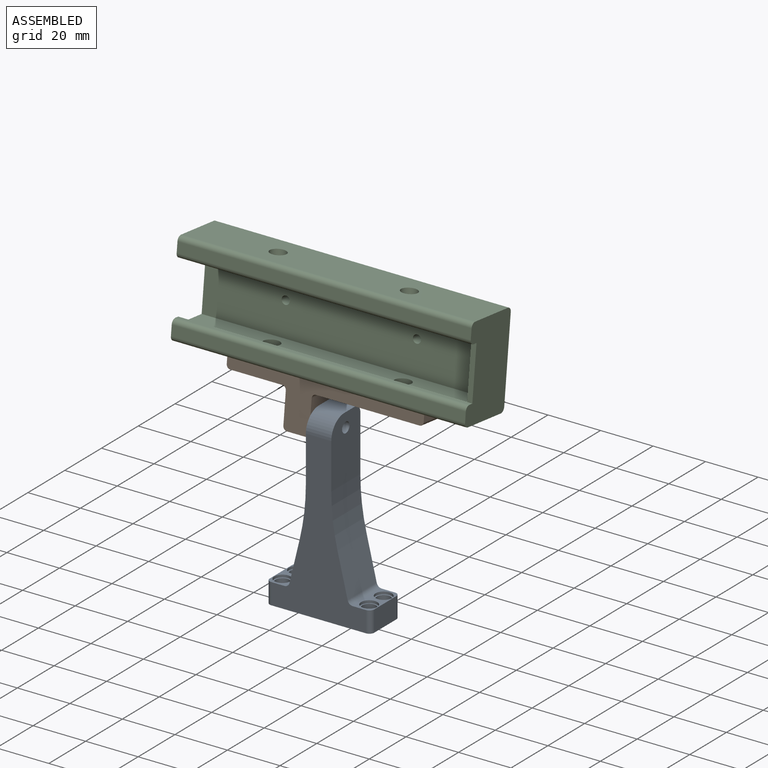
[diagram: assembled view]
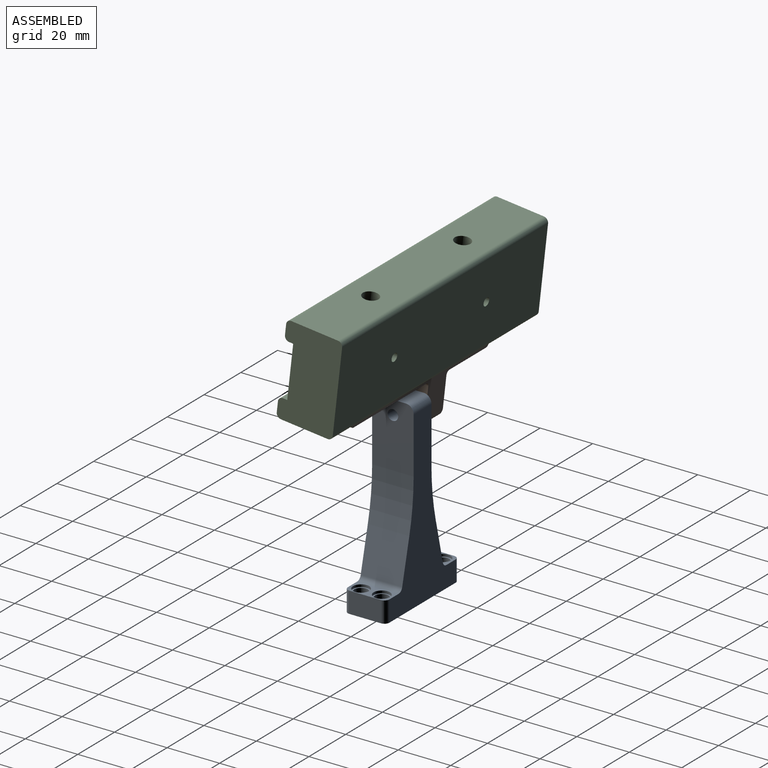
[diagram: assembled view, second angle]
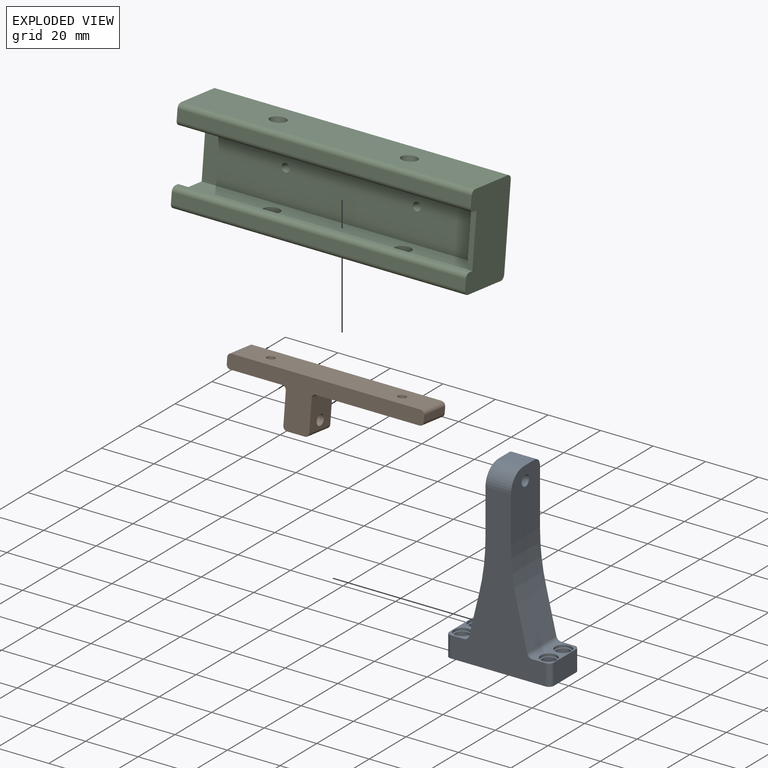
[diagram: exploded view]
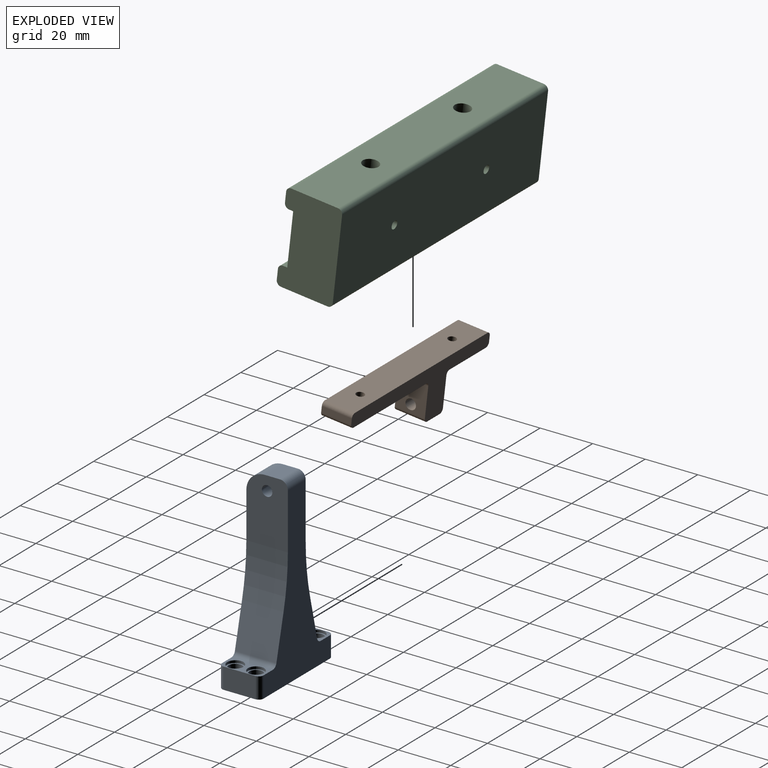
[diagram: exploded view, second angle]
ASSEMBLY  parts=3 mates=2
PART A: 43 faces, bbox 39.8x15.8x69.6 mm
  f0: plane 15.8x6.88mm, normal (0,0,1), area 46.9mm2, adj f8,f12,f13,f14,f15,f18,f23,f42
  f1: plane 24.36x15.8mm, normal (1,0,0), area 359.9mm2, adj f8,f12,f32,f34,f35,f36,f40
  f2: plane 15.8x6.88mm, normal (0,0,1), area 46.9mm2, adj f8,f9,f10,f11,f12,f16,f21,f41
  f3: cylinder r=2.59mm len=6.08mm, axis (0,0,-1), area 98.9mm2, adj f17,f25
  f4: cylinder r=2.59mm len=6.08mm, axis (0,0,-1), area 98.9mm2, adj f22,f30
  f5: cylinder r=2.59mm len=6.08mm, axis (0,0,-1), area 98.9mm2, adj f20,f28
  f6: cylinder r=2.59mm len=6.08mm, axis (0,0,-1), area 98.9mm2, adj f19,f27
  f7: plane 39.8x15.8mm, normal (0,0,-1), area 505.1mm2, adj f8,f9,f10,f11,f12,f13,f14,f15
  f8: plane 66.62x36.08mm, normal (0,1,0), area 1045.8mm2, adj f0,f1,f2,f7,f9,f15,f33,f36
  f9: cylinder r=1.86mm len=8mm, axis (0,0,-1), area 23.4mm2, adj f2,f7,f8,f10
  f10: plane 12.08x8mm, normal (-1,0,0), area 96.6mm2, adj f2,f7,f9,f11
  f11: cylinder r=1.86mm len=8mm, axis (0,0,-1), area 23.4mm2, adj f2,f7,f10,f12
  f12: plane 62.62x36.08mm, normal (0,-1,0), area 1007.1mm2, adj f0,f1,f2,f7,f11,f13,f33,f35
  f13: cylinder r=1.86mm len=8mm, axis (0,0,-1), area 23.4mm2, adj f0,f7,f12,f14
  f14: plane 12.08x8mm, normal (1,0,0), area 96.6mm2, adj f0,f7,f13,f15
  f15: cylinder r=1.86mm len=8mm, axis (0,0,-1), area 23.4mm2, adj f0,f7,f8,f14
  f16: cylinder r=3.1mm len=6.2mm, axis (0,0,1), area 18.7mm2, adj f2,f17
  f17: plane 6.2x6.2mm, normal (0,0,1), area 9.1mm2, adj f3,f16
  f18: cylinder r=3.1mm len=6.2mm, axis (0,0,1), area 18.7mm2, adj f0,f19
  f19: plane 6.2x6.2mm, normal (0,0,1), area 9.1mm2, adj f6,f18
  f20: plane 6.2x6.2mm, normal (0,0,1), area 9.1mm2, adj f5,f21
  f21: cylinder r=3.1mm len=6.2mm, axis (0,0,1), area 18.7mm2, adj f2,f20
  f22: plane 6.2x6.2mm, normal (0,0,1), area 9.1mm2, adj f4,f23
  f23: cylinder r=3.1mm len=6.2mm, axis (0,0,1), area 18.7mm2, adj f0,f22
  f24: cylinder r=3.1mm len=6.2mm, axis (0,0,-1), area 18.7mm2, adj f7,f25
  f25: plane 6.2x6.2mm, normal (0,0,-1), area 9.1mm2, adj f3,f24
  f26: cylinder r=3.1mm len=6.2mm, axis (0,0,-1), area 18.7mm2, adj f7,f27
  f27: plane 6.2x6.2mm, normal (0,0,-1), area 9.1mm2, adj f6,f26
  f28: plane 6.2x6.2mm, normal (0,0,-1), area 9.1mm2, adj f5,f29
  f29: cylinder r=3.1mm len=6.2mm, axis (0,0,-1), area 18.7mm2, adj f7,f28
  f30: plane 6.2x6.2mm, normal (0,0,-1), area 9.1mm2, adj f4,f31
  f31: cylinder r=3.1mm len=6.2mm, axis (0,0,-1), area 18.7mm2, adj f7,f30
  f32: plane 9.7x5.8mm, normal (0,0,1), area 56.2mm2, adj f1,f33,f35,f36
  f33: plane 24.36x15.8mm, normal (-1,0,0), area 359.9mm2, adj f8,f12,f32,f34,f35,f36,f39
  f34: cylinder r=2mm len=9.7mm, axis (-1,0,0), area 121.8mm2, adj f1,f33
  f35: cylinder r=7mm len=9.7mm, axis (-1,0,0), area 106.6mm2, adj f1,f12,f32,f33
  f36: cylinder r=3mm len=9.7mm, axis (1,0,0), area 45.7mm2, adj f1,f8,f32,f33
  f37: plane 16.11x15.8mm, normal (0.97,0,0.23), area 261.9mm2, adj f8,f12,f40,f42
  f38: plane 16.11x15.8mm, normal (-0.97,0,0.23), area 261.9mm2, adj f8,f12,f39,f41
  f39: cylinder r=83.55mm len=19.61mm, axis (0,1,0), area 312.8mm2, adj f8,f12,f33,f38
  f40: cylinder r=83.55mm len=19.61mm, axis (0,1,0), area 312.8mm2, adj f1,f8,f12,f37
  f41: cylinder r=2mm len=15.8mm, axis (0,1,0), area 42.1mm2, adj f2,f8,f12,f38
  f42: cylinder r=2mm len=15.8mm, axis (0,-1,0), area 42.1mm2, adj f0,f8,f12,f37
PART B: 21 faces, bbox 75x19.9x11.5 mm
  f0: plane 72x11.5mm, normal (0,1,0), area 812.9mm2, adj f8,f9,f10,f17,f19,f20
  f1: plane 11.5x2.28mm, normal (-1,0,0), area 26.2mm2, adj f8,f9,f10,f11
  f2: plane 39.43x11.5mm, normal (0,-1,0), area 445.8mm2, adj f8,f9,f11,f12,f20
  f3: plane 11.65x11.5mm, normal (-1,0,0), area 121.5mm2, adj f8,f9,f12,f13,f18
  f4: plane 11.5x6.85mm, normal (0,-1,0), area 78.8mm2, adj f8,f9,f13,f14
  f5: plane 11.65x11.5mm, normal (1,0,0), area 121.5mm2, adj f8,f9,f14,f15,f18
  f6: plane 19.73x11.5mm, normal (0,-1,0), area 219.3mm2, adj f8,f9,f15,f16,f19
  f7: plane 11.5x2.28mm, normal (1,0,0), area 26.2mm2, adj f8,f9,f16,f17
  f8: plane 75x19.93mm, normal (0,0,1), area 538.2mm2, adj f0,f1,f2,f3,f4,f5,f6,f7
  f9: plane 75x19.93mm, normal (0,0,-1), area 538.2mm2, adj f0,f1,f2,f3,f4,f5,f6,f7
  f10: cylinder r=1.5mm len=11.5mm, axis (0,0,-1), area 27.1mm2, adj f0,f1,f8,f9
  f11: cylinder r=1.5mm len=11.5mm, axis (0,0,-1), area 27.1mm2, adj f1,f2,f8,f9
  f12: cylinder r=1.5mm len=11.5mm, axis (0,0,-1), area 27.1mm2, adj f2,f3,f8,f9
  f13: cylinder r=1.5mm len=11.5mm, axis (0,0,-1), area 27.1mm2, adj f3,f4,f8,f9
  f14: cylinder r=1.5mm len=11.5mm, axis (0,0,1), area 27.1mm2, adj f4,f5,f8,f9
  f15: cylinder r=1.5mm len=11.5mm, axis (0,0,-1), area 27.1mm2, adj f5,f6,f8,f9
  f16: cylinder r=1.5mm len=11.5mm, axis (0,0,-1), area 27.1mm2, adj f6,f7,f8,f9
  f17: cylinder r=1.5mm len=11.5mm, axis (0,0,1), area 27.1mm2, adj f0,f7,f8,f9
  f18: cylinder r=2mm len=9.85mm, axis (1,0,0), area 123.8mm2, adj f3,f5
  f19: cylinder r=1.55mm len=5.28mm, axis (0,1,0), area 51.4mm2, adj f0,f6
  f20: cylinder r=1.55mm len=5.28mm, axis (0,1,0), area 51.4mm2, adj f0,f2
PART C: 32 faces, bbox 112x35.1x21.5 mm
  f0: plane 110x2.5mm, normal (0,0,-1), area 275mm2, adj f1,f9,f21,f30
  f1: plane 110x13.1mm, normal (0,-1,0), area 1384.5mm2, adj f0,f3,f21,f28,f29,f30
  f2: plane 110x13.1mm, normal (0,1,0), area 1384.5mm2, adj f3,f10,f21,f25,f27,f30
  f3: plane 110x25.1mm, normal (0,0,1), area 2746.4mm2, adj f1,f2,f21,f22,f23,f30
  f4: plane 112x17.88mm, normal (0,1,0), area 1946.4mm2, adj f17,f18,f20,f21,f28,f29
  f5: cylinder r=1.55mm len=3.1mm, axis (0,-1,0), area 30.2mm2, adj f7,f26
  f6: cylinder r=1.55mm len=3.1mm, axis (0,-1,0), area 30.2mm2, adj f7,f24
  f7: plane 112x17.88mm, normal (0,-1,0), area 1987.8mm2, adj f5,f6,f14,f15,f20,f21
  f8: cylinder r=1.78mm len=112mm, axis (-1,0,0), area 314mm2, adj f9,f19,f20,f21
  f9: plane 112x1.57mm, normal (0,-1,0), area 175.6mm2, adj f0,f8,f20,f21,f31
  f10: plane 110x2.5mm, normal (0,0,-1), area 275mm2, adj f2,f11,f21,f30
  f11: plane 112x1.57mm, normal (0,1,0), area 175.6mm2, adj f10,f12,f20,f21,f31
  f12: cylinder r=1.78mm len=112mm, axis (-1,0,0), area 314mm2, adj f11,f13,f20,f21
  f13: plane 112x3.93mm, normal (0,0,1), area 440.2mm2, adj f12,f14,f20,f21
  f14: cylinder r=1.78mm len=112mm, axis (-1,0,0), area 314mm2, adj f7,f13,f20,f21
  f15: cylinder r=1.78mm len=112mm, axis (-1,0,0), area 314mm2, adj f7,f16,f20,f21
  f16: plane 112x31.53mm, normal (0,0,-1), area 3516.8mm2, adj f15,f17,f20,f21,f22,f23
  f17: cylinder r=1.78mm len=112mm, axis (-1,0,0), area 314mm2, adj f4,f16,f20,f21
  f18: cylinder r=1.78mm len=112mm, axis (-1,0,0), area 314mm2, adj f4,f19,f20,f21
  f19: plane 112x3.93mm, normal (0,0,1), area 440.2mm2, adj f8,f18,f20,f21
  f20: plane 35.1x21.45mm, normal (1,0,0), area 681.5mm2, adj f4,f7,f8,f9,f11,f12,f13,f14
  f21: plane 35.1x21.45mm, normal (-1,0,0), area 352.7mm2, adj f0,f1,f2,f3,f4,f7,f8,f9
  f22: cylinder r=1.53mm len=5mm, axis (0,0,-1), area 47.9mm2, adj f3,f16
  f23: cylinder r=1.53mm len=5mm, axis (0,0,-1), area 47.9mm2, adj f3,f16
  f24: plane 6x6mm, normal (0,1,0), area 20.7mm2, adj f6,f25
  f25: cylinder r=3mm len=6mm, axis (0,1,0), area 35.8mm2, adj f2,f24
  f26: plane 6x6mm, normal (0,1,0), area 20.7mm2, adj f5,f27
  f27: cylinder r=3mm len=6mm, axis (0,1,0), area 35.8mm2, adj f2,f26
  f28: cylinder r=3mm len=6mm, axis (0,1,0), area 94.2mm2, adj f1,f4
  f29: cylinder r=3mm len=6mm, axis (0,1,0), area 94.2mm2, adj f1,f4
  f30: plane 25.1x13.1mm, normal (-1,0,0), area 328.8mm2, adj f0,f1,f2,f3,f10,f31
  f31: plane 20.1x2mm, normal (0,0,1), area 40.2mm2, adj f9,f11,f20,f30
PLACE A t=(10.92,-1,-45.64)mm fixed
PLACE B rot(axis=(0,0.75,0.67),180deg) t=(1.15,-7.22,14.85)mm
PLACE C rot(axis=(1,0,0),83.5deg) t=(11,8.79,50.75)mm
MATE revolute B.f18 <-> A.f34  axis (1,0,0) through (6.07,-1,18.67)mm
MATE fastened C.f27 <-> B.f19  axis (0,-0.11,-0.99) through (-14,0.75,34)mm
